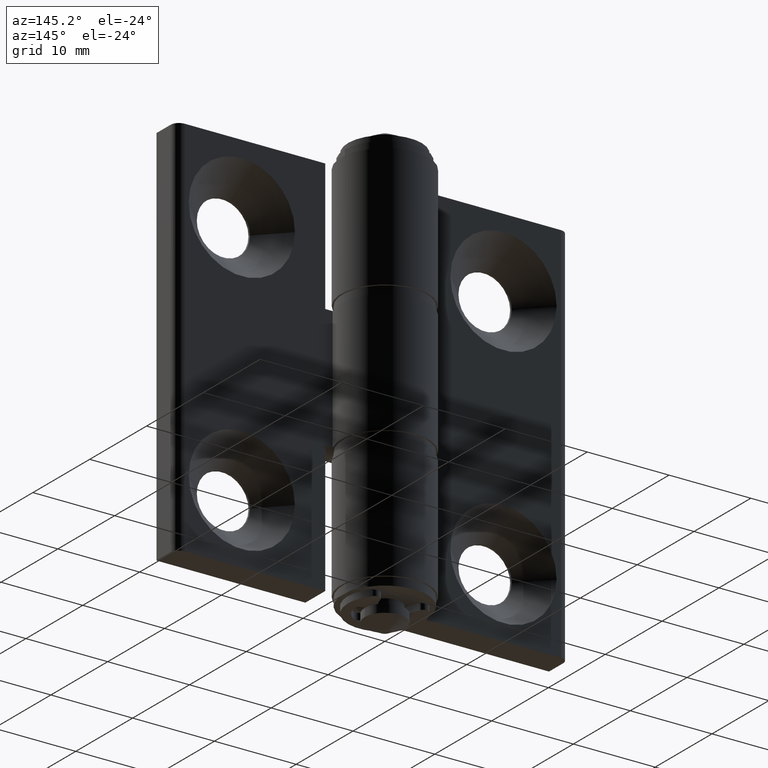
[diagram: clean part render]
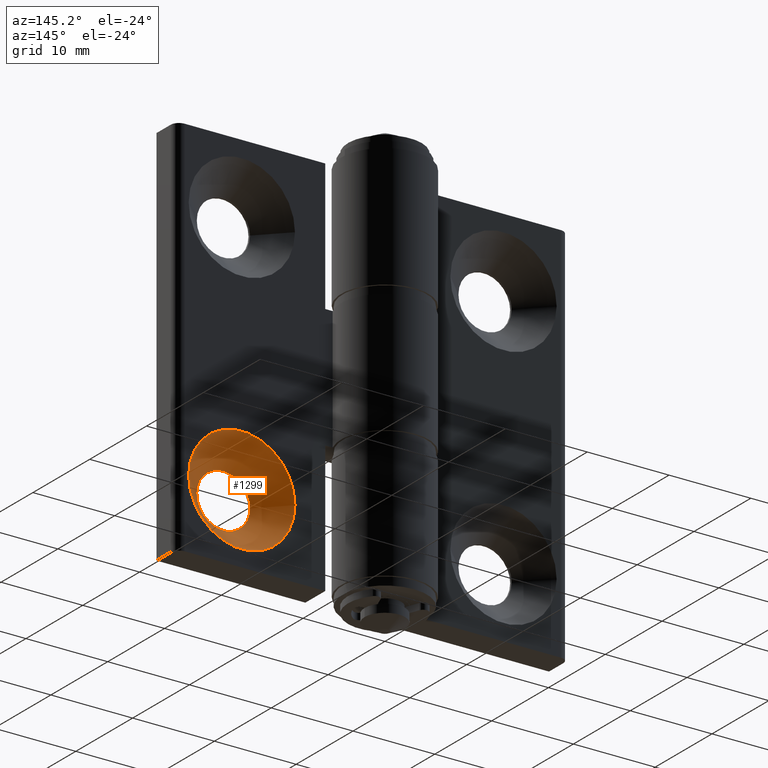
[diagram: same view with one face highlighted and labeled with its STEP entity id]
A machine part, auxiliary view. The second image highlights one B-rep face of the part: STEP entity #1299.
In plain terms, the highlighted conical surface has half-angle 45 deg.
Its self-contained STEP definition (entity closure, byte-faithful):
#77=CONICAL_SURFACE('',#1413,4.875,0.785398163397448);
#134=FACE_BOUND('',#282,.T.);
#181=FACE_OUTER_BOUND('',#281,.T.);
#281=EDGE_LOOP('',(#1024));
#282=EDGE_LOOP('',(#1025));
#376=CIRCLE('',#1405,6.5);
#380=CIRCLE('',#1414,3.25);
#662=VERTEX_POINT('',#2099);
#668=VERTEX_POINT('',#2118);
#798=EDGE_CURVE('',#662,#662,#376,.T.);
#806=EDGE_CURVE('',#668,#668,#380,.T.);
#1024=ORIENTED_EDGE('',*,*,#806,.F.);
#1025=ORIENTED_EDGE('',*,*,#798,.F.);
#1299=ADVANCED_FACE('',(#181,#134),#77,.F.);
#1405=AXIS2_PLACEMENT_3D('',#2100,#1664,#1665);
#1413=AXIS2_PLACEMENT_3D('',#2117,#1684,#1685);
#1414=AXIS2_PLACEMENT_3D('',#2119,#1686,#1687);
#1664=DIRECTION('center_axis',(0.,-1.,0.));
#1665=DIRECTION('ref_axis',(1.,0.,0.));
#1684=DIRECTION('center_axis',(0.,1.,0.));
#1685=DIRECTION('ref_axis',(1.,0.,0.));
#1686=DIRECTION('center_axis',(0.,1.,0.));
#1687=DIRECTION('ref_axis',(1.,0.,0.));
#2099=CARTESIAN_POINT('',(9.5,-2.15,-15.));
#2100=CARTESIAN_POINT('Origin',(16.,-2.15,-15.));
#2117=CARTESIAN_POINT('Origin',(16.,-3.775,-15.));
#2118=CARTESIAN_POINT('',(12.75,-5.4,-15.));
#2119=CARTESIAN_POINT('Origin',(16.,-5.4,-15.));